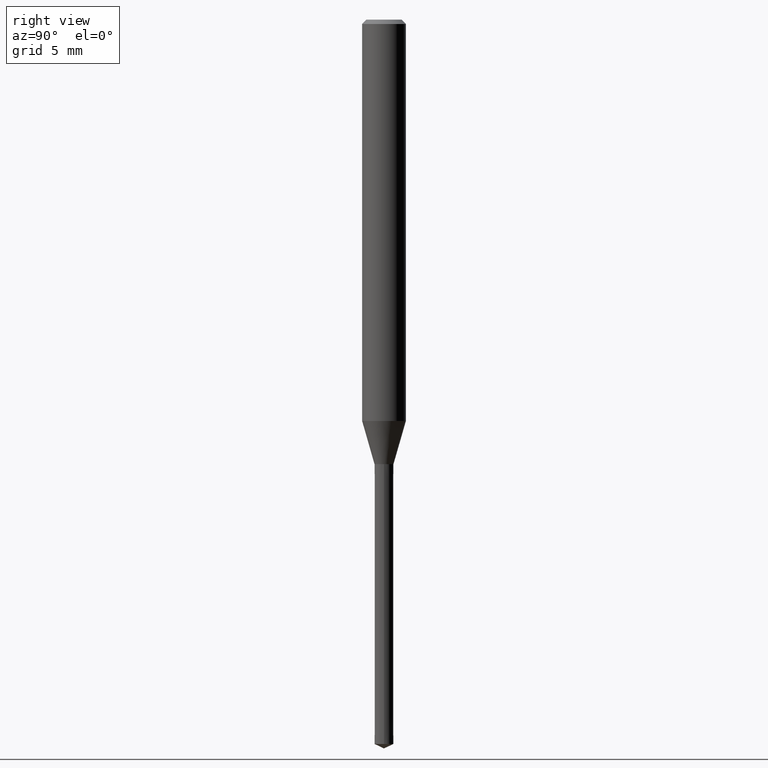
[diagram: clean part render]
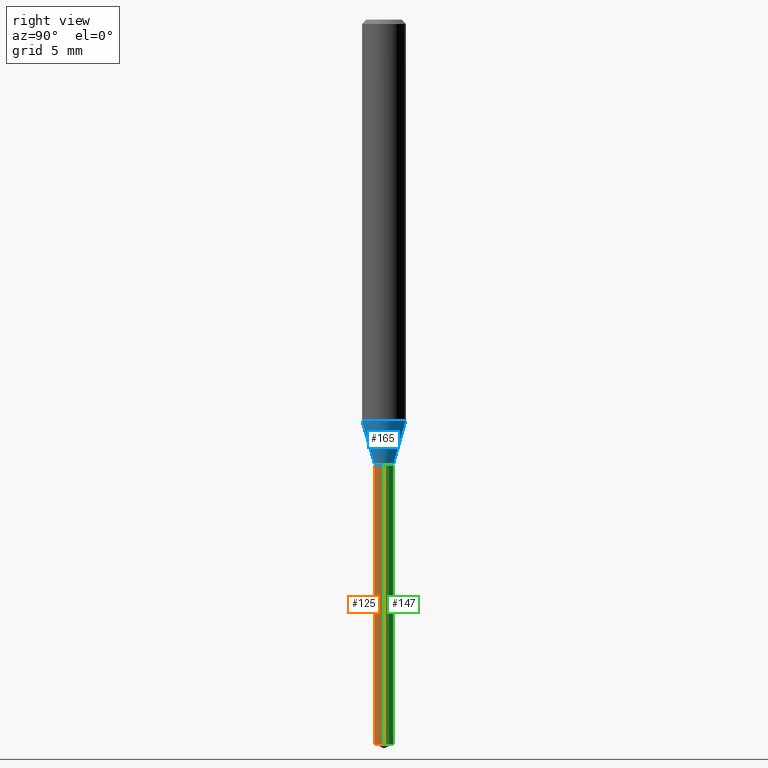
[diagram: same view with three faces highlighted in distinct colors, each labeled with its STEP entity id]
A machine part, right view with three faces highlighted in distinct colors.
Their STEP definitions:

[orange] entity #125 — the highlighted conical surface has half-angle 0.003 deg.
#109=VERTEX_POINT('',#247);
#111=EDGE_CURVE('',#143,#115,#249,.T.);
#115=VERTEX_POINT('',#253);
#125=ADVANCED_FACE('',(#265),#266,.T.);
#143=VERTEX_POINT('',#285);
#151=EDGE_CURVE('',#109,#115,#294,.T.);
#159=VERTEX_POINT('',#302);
#169=EDGE_CURVE('',#159,#109,#314,.T.);
#201=EDGE_CURVE('',#143,#159,#350,.T.);
#247=CARTESIAN_POINT('',(-0.651,0.0,-30.5));
#249=CIRCLE('',#393,0.65);
#253=CARTESIAN_POINT('',(-0.65,0.0,-49.69690002));
#265=FACE_OUTER_BOUND('',#411,.T.);
#266=CONICAL_SURFACE('',#412,0.6505,5.20917438781079E-005);
#285=CARTESIAN_POINT('',(0.65,7.95994129984545E-017,-49.69690002));
#294=LINE('',#449,#450);
#302=CARTESIAN_POINT('',(0.651,7.97218736338368E-017,-30.5));
#314=CIRCLE('',#478,0.651);
#350=LINE('',#525,#526);
#393=AXIS2_PLACEMENT_3D('',#564,#565,#566);
#411=EDGE_LOOP('',(#588,#589,#590,#591));
#412=AXIS2_PLACEMENT_3D('',#592,#593,#594);
#449=CARTESIAN_POINT('',(-0.6505,-7.96606433161456E-017,-40.09845001));
#450=VECTOR('',#617,1.0);
#478=AXIS2_PLACEMENT_3D('',#645,#646,#647);
#525=CARTESIAN_POINT('',(0.6505,7.96606433161457E-017,-40.09845001));
#526=VECTOR('',#693,1.0);
#564=CARTESIAN_POINT('',(0.0,0.0,-49.69690002));
#565=DIRECTION('',(0.0,0.0,-1.0));
#566=DIRECTION('',(-1.0,0.0,0.0));
#588=ORIENTED_EDGE('',*,*,#151,.T.);
#589=ORIENTED_EDGE('',*,*,#111,.F.);
#590=ORIENTED_EDGE('',*,*,#201,.T.);
#591=ORIENTED_EDGE('',*,*,#169,.T.);
#592=CARTESIAN_POINT('',(0.0,0.0,-40.09845001));
#593=DIRECTION('',(-0.0,-0.0,1.0));
#594=DIRECTION('',(-1.0,0.0,0.0));
#617=DIRECTION('',(5.2091743854549E-005,6.37918805059684E-021,-0.999999998643225));
#645=CARTESIAN_POINT('',(0.0,0.0,-30.5));
#646=DIRECTION('',(0.0,0.0,-1.0));
#647=DIRECTION('',(-1.0,0.0,0.0));
#693=DIRECTION('',(5.2091743854549E-005,6.37918805059684E-021,0.999999998643225));

[blue] entity #165 — the highlighted conical surface has half-angle 16.006 deg.
#101=VERTEX_POINT('',#238);
#129=EDGE_CURVE('',#195,#183,#270,.T.);
#149=EDGE_CURVE('',#101,#179,#292,.T.);
#161=EDGE_CURVE('',#179,#195,#304,.T.);
#165=ADVANCED_FACE('',(#308),#309,.T.);
#179=VERTEX_POINT('',#324);
#183=VERTEX_POINT('',#329);
#195=VERTEX_POINT('',#344);
#197=EDGE_CURVE('',#101,#183,#346,.T.);
#238=CARTESIAN_POINT('',(0.0,1.5,-27.536));
#270=LINE('',#419,#420);
#292=LINE('',#445,#446);
#304=CIRCLE('',#466,0.65);
#308=FACE_OUTER_BOUND('',#471,.T.);
#309=CONICAL_SURFACE('',#472,1.075,0.279357145312634);
#324=CARTESIAN_POINT('',(0.0,0.65,-30.4991339745962));
#329=CARTESIAN_POINT('',(1.83690953073357E-016,-1.5,-27.536));
#344=CARTESIAN_POINT('',(7.95994129984545E-017,-0.65,-30.4991339745962));
#346=CIRCLE('',#519,1.5);
#419=CARTESIAN_POINT('',(1.31645183035906E-016,-1.075,-29.0175669872981));
#420=VECTOR('',#596,1.0);
#445=CARTESIAN_POINT('',(-1.31645183035906E-016,1.075,-29.0175669872981));
#446=VECTOR('',#616,1.0);
#466=AXIS2_PLACEMENT_3D('',#623,#624,#625);
#471=EDGE_LOOP('',(#630,#631,#632,#633));
#472=AXIS2_PLACEMENT_3D('',#634,#635,#636);
#519=AXIS2_PLACEMENT_3D('',#687,#688,#689);
#596=DIRECTION('',(3.37670228204169E-017,-0.275737772509668,0.961232896238683));
#616=DIRECTION('',(3.37670228204169E-017,-0.275737772509668,-0.961232896238683));
#623=CARTESIAN_POINT('',(0.0,0.0,-30.4991339745962));
#624=DIRECTION('',(0.0,0.0,-1.0));
#625=DIRECTION('',(0.0,1.0,0.0));
#630=ORIENTED_EDGE('',*,*,#149,.F.);
#631=ORIENTED_EDGE('',*,*,#197,.T.);
#632=ORIENTED_EDGE('',*,*,#129,.F.);
#633=ORIENTED_EDGE('',*,*,#161,.F.);
#634=CARTESIAN_POINT('',(0.0,0.0,-29.0175669872981));
#635=DIRECTION('',(-0.0,-0.0,1.0));
#636=DIRECTION('',(0.0,1.0,0.0));
#687=CARTESIAN_POINT('',(0.0,0.0,-27.536));
#688=DIRECTION('',(0.0,0.0,-1.0));
#689=DIRECTION('',(0.0,1.0,0.0));

[green] entity #147 — the highlighted conical surface has half-angle 0.003 deg.
#109=VERTEX_POINT('',#247);
#113=EDGE_CURVE('',#109,#159,#251,.T.);
#115=VERTEX_POINT('',#253);
#143=VERTEX_POINT('',#285);
#147=ADVANCED_FACE('',(#289),#290,.T.);
#151=EDGE_CURVE('',#109,#115,#294,.T.);
#159=VERTEX_POINT('',#302);
#177=EDGE_CURVE('',#115,#143,#322,.T.);
#201=EDGE_CURVE('',#143,#159,#350,.T.);
#247=CARTESIAN_POINT('',(-0.651,0.0,-30.5));
#251=CIRCLE('',#396,0.651);
#253=CARTESIAN_POINT('',(-0.65,0.0,-49.69690002));
#285=CARTESIAN_POINT('',(0.65,7.95994129984545E-017,-49.69690002));
#289=FACE_OUTER_BOUND('',#441,.T.);
#290=CONICAL_SURFACE('',#442,0.6505,5.20917438781079E-005);
#294=LINE('',#449,#450);
#302=CARTESIAN_POINT('',(0.651,7.97218736338368E-017,-30.5));
#322=CIRCLE('',#490,0.65);
#350=LINE('',#525,#526);
#396=AXIS2_PLACEMENT_3D('',#567,#568,#569);
#441=EDGE_LOOP('',(#609,#610,#611,#612));
#442=AXIS2_PLACEMENT_3D('',#613,#614,#615);
#449=CARTESIAN_POINT('',(-0.6505,-7.96606433161456E-017,-40.09845001));
#450=VECTOR('',#617,1.0);
#490=AXIS2_PLACEMENT_3D('',#652,#653,#654);
#525=CARTESIAN_POINT('',(0.6505,7.96606433161457E-017,-40.09845001));
#526=VECTOR('',#693,1.0);
#567=CARTESIAN_POINT('',(0.0,0.0,-30.5));
#568=DIRECTION('',(0.0,0.0,-1.0));
#569=DIRECTION('',(-1.0,0.0,0.0));
#609=ORIENTED_EDGE('',*,*,#151,.F.);
#610=ORIENTED_EDGE('',*,*,#113,.T.);
#611=ORIENTED_EDGE('',*,*,#201,.F.);
#612=ORIENTED_EDGE('',*,*,#177,.F.);
#613=CARTESIAN_POINT('',(0.0,0.0,-40.09845001));
#614=DIRECTION('',(-0.0,-0.0,1.0));
#615=DIRECTION('',(-1.0,0.0,0.0));
#617=DIRECTION('',(5.2091743854549E-005,6.37918805059684E-021,-0.999999998643225));
#652=CARTESIAN_POINT('',(0.0,0.0,-49.69690002));
#653=DIRECTION('',(0.0,0.0,-1.0));
#654=DIRECTION('',(-1.0,0.0,0.0));
#693=DIRECTION('',(5.2091743854549E-005,6.37918805059684E-021,0.999999998643225));